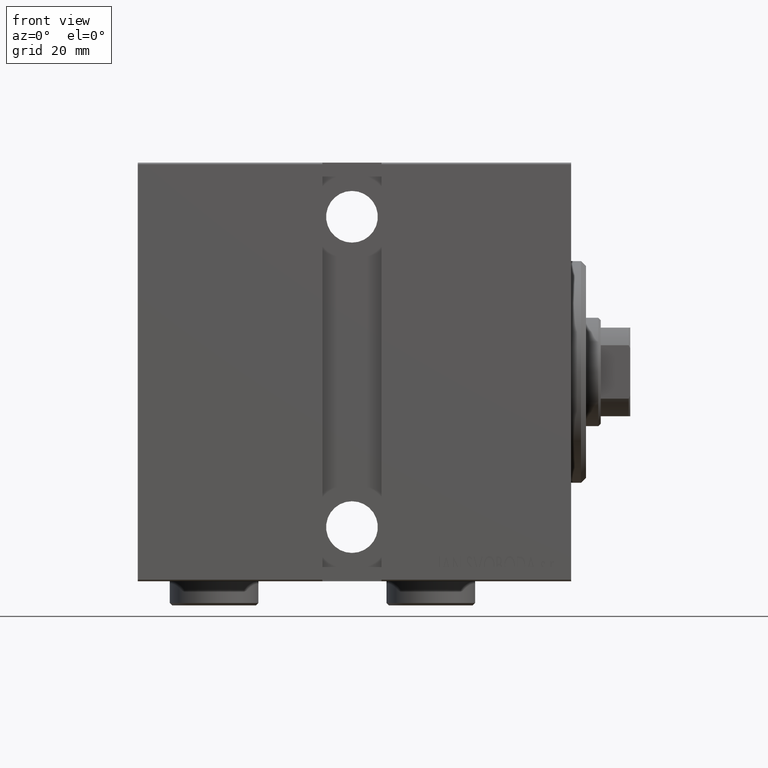
[diagram: clean part render]
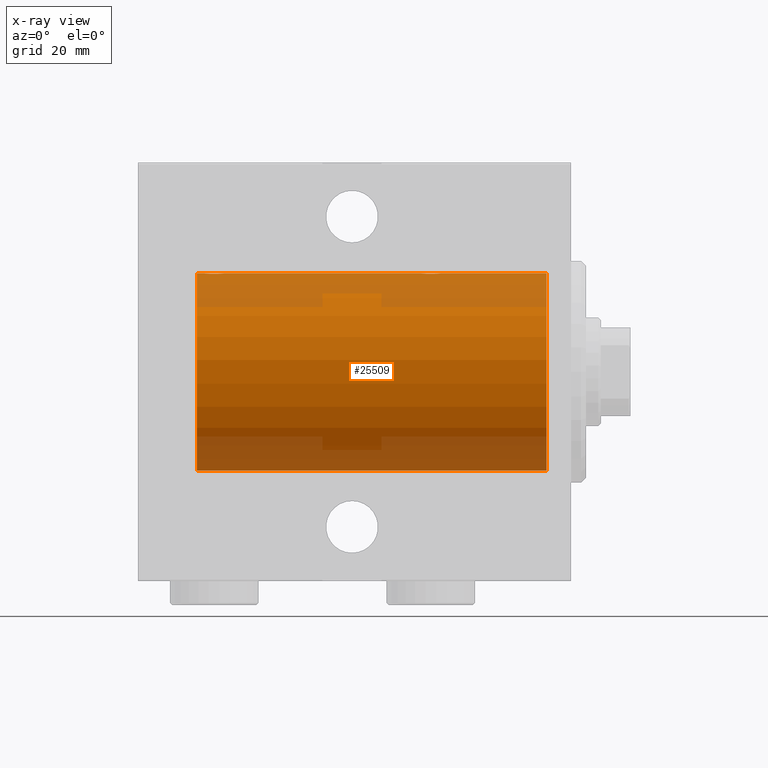
[diagram: x-ray — body ghosted, one internal face saturated and labeled with its STEP entity id]
A machine part, front view, then the same camera in x-ray: the body is ghosted and one INTERNAL B-rep face — a face not visible from any outside direction — is saturated and labeled: STEP entity #25509.
In plain terms, the highlighted cylindrical surface (partial cylindrical patch) has radius 20 mm, axis along (1, 0, -0).
Its self-contained STEP definition (entity closure, byte-faithful):
#184 = CARTESIAN_POINT ( 'NONE',  ( 70.50000000000000000, -1.553188236289650144E-23, 20.00000000000000000 ) ) ;
#1310 = CARTESIAN_POINT ( 'NONE',  ( 76.00000000000000000, 0.000000000000000000, 20.00000000000000000 ) ) ;
#1446 = CIRCLE ( 'NONE', #26332, 20.00000000000000000 ) ;
#1497 = CARTESIAN_POINT ( 'NONE',  ( 72.76180153897439595, 1.999905101582713396, 19.89975827978156531 ) ) ;
#1690 = VECTOR ( 'NONE', #13404, 1000.000000000000000 ) ;
#2210 = VECTOR ( 'NONE', #42486, 1000.000000000000000 ) ;
#2357 = CARTESIAN_POINT ( 'NONE',  ( 70.76510545398019758, 1.003547732426800065, 19.97510079925437765 ) ) ;
#3286 = AXIS2_PLACEMENT_3D ( 'NONE', #23971, #3691, #13947 ) ;
#3691 = DIRECTION ( 'NONE',  ( -1.000000000000000000, -0.000000000000000000, -0.000000000000000000 ) ) ;
#4197 = EDGE_CURVE ( 'NONE', #37184, #6694, #1446, .T. ) ;
#4492 = CARTESIAN_POINT ( 'NONE',  ( 30.00615770380712632, 1.322305185229308844, 19.95645382900617193 ) ) ;
#4717 = CARTESIAN_POINT ( 'NONE',  ( 26.76510545398016205, 1.003547732426798955, 19.97510079925437054 ) ) ;
#4923 = CARTESIAN_POINT ( 'NONE',  ( 27.61403810544162951, 1.797847595792755770, 19.91909332229799290 ) ) ;
#5140 = CARTESIAN_POINT ( 'NONE',  ( 26.50000000000000355, -1.552596590610734385E-23, 20.00000000000000000 ) ) ;
#5489 = CARTESIAN_POINT ( 'NONE',  ( 70.90992932310328456, 1.220099331833891743, 19.96304379627741454 ) ) ;
#5687 = VERTEX_POINT ( 'NONE', #11091 ) ;
#6638 = EDGE_CURVE ( 'NONE', #14814, #18893, #23947, .T. ) ;
#6689 = DIRECTION ( 'NONE',  ( 0.000000000000000000, 0.000000000000000000, 1.000000000000000000 ) ) ;
#6694 = VERTEX_POINT ( 'NONE', #13046 ) ;
#7266 = CYLINDRICAL_SURFACE ( 'NONE', #3286, 20.00000000000000000 ) ;
#8063 = CARTESIAN_POINT ( 'NONE',  ( 28.23758582179997845, 1.987020435121066742, 19.90106552791688799 ) ) ;
#8289 = CARTESIAN_POINT ( 'NONE',  ( 26.99261358456011095, 1.321069663197662836, 19.95654117037011588 ) ) ;
#8416 = CARTESIAN_POINT ( 'NONE',  ( 70.60210312641140717, 0.6443418861413057197, 19.98998539619404369 ) ) ;
#8495 = CARTESIAN_POINT ( 'NONE',  ( 26.70246098872837237, 0.8865903856744267175, 19.98070694681038972 ) ) ;
#8626 = CARTESIAN_POINT ( 'NONE',  ( 70.70246098872841856, 0.8865903856744251632, 19.98070694681040038 ) ) ;
#8843 = CARTESIAN_POINT ( 'NONE',  ( 70.99261358456014648, 1.321069663197660837, 19.95654117037011943 ) ) ;
#9058 = CARTESIAN_POINT ( 'NONE',  ( 74.50000000000001421, 1.179655747245154047E-15, 20.00000000000000000 ) ) ;
#9269 = CARTESIAN_POINT ( 'NONE',  ( 74.09059733457554842, 1.219458756546261791, 19.96308513509966787 ) ) ;
#10032 = DIRECTION ( 'NONE',  ( -1.000000000000000000, 0.000000000000000000, 0.000000000000000000 ) ) ;
#10274 = EDGE_CURVE ( 'NONE', #14752, #6694, #31487, .T. ) ;
#10631 = ORIENTED_EDGE ( 'NONE', *, *, #43259, .T. ) ;
#10821 = FACE_OUTER_BOUND ( 'NONE', #30316, .T. ) ;
#11091 = CARTESIAN_POINT ( 'NONE',  ( 30.50000000000000000, -3.987914257189907626E-15, 20.00000000000000000 ) ) ;
#11216 = DIRECTION ( 'NONE',  ( -1.000000000000000000, -0.000000000000000000, -0.000000000000000000 ) ) ;
#11280 = EDGE_CURVE ( 'NONE', #18893, #5687, #25134, .T. ) ;
#11390 = CARTESIAN_POINT ( 'NONE',  ( 28.76180153897437819, 1.999905101582717171, 19.89975827978156531 ) ) ;
#11831 = CARTESIAN_POINT ( 'NONE',  ( 30.48701494615325203, 0.2622407139811169796, 19.99868965376115071 ) ) ;
#12603 = CARTESIAN_POINT ( 'NONE',  ( 71.85628869360149906, 1.898109641280497639, 19.90978941500366872 ) ) ;
#13046 = CARTESIAN_POINT ( 'NONE',  ( 5.000000000000004441, 2.449293598294706513E-15, -20.00000000000000000 ) ) ;
#13130 = ORIENTED_EDGE ( 'NONE', *, *, #31786, .F. ) ;
#13404 = DIRECTION ( 'NONE',  ( -1.000000000000000000, -0.000000000000000000, -0.000000000000000000 ) ) ;
#13918 = ORIENTED_EDGE ( 'NONE', *, *, #6638, .T. ) ;
#13947 = DIRECTION ( 'NONE',  ( 0.000000000000000000, 0.000000000000000000, 1.000000000000000000 ) ) ;
#14287 = VECTOR ( 'NONE', #11216, 1000.000000000000000 ) ;
#14522 = CARTESIAN_POINT ( 'NONE',  ( 30.50000000000000000, -3.987914257189907626E-15, 20.00000000000000000 ) ) ;
#14752 = VERTEX_POINT ( 'NONE', #20667 ) ;
#14814 = VERTEX_POINT ( 'NONE', #25534 ) ;
#14957 = CARTESIAN_POINT ( 'NONE',  ( 30.39765113166073363, 0.6450624715427637490, 19.98996196681219928 ) ) ;
#15094 = CARTESIAN_POINT ( 'NONE',  ( 71.49702773215048524, 1.735228749583821672, 19.92471474456648650 ) ) ;
#15314 = CARTESIAN_POINT ( 'NONE',  ( 73.72950112230634545, 1.598854313793176773, 19.93684595445884256 ) ) ;
#15489 = ORIENTED_EDGE ( 'NONE', *, *, #10274, .F. ) ;
#15739 = CARTESIAN_POINT ( 'NONE',  ( 71.17939834916164443, 1.507796451871717736, 19.94330239452387943 ) ) ;
#15961 = CARTESIAN_POINT ( 'NONE',  ( 71.61403810544166504, 1.797847595792759323, 19.91909332229798935 ) ) ;
#16288 = DIRECTION ( 'NONE',  ( -1.000000000000000000, -0.000000000000000000, -0.000000000000000000 ) ) ;
#16767 = CARTESIAN_POINT ( 'NONE',  ( 76.00000000000000000, 0.000000000000000000, 20.00000000000000000 ) ) ;
#17207 = LINE ( 'NONE', #16767, #1690 ) ;
#18091 = CARTESIAN_POINT ( 'NONE',  ( 29.50645759073829311, 1.747830109444741042, 19.92373272380676852 ) ) ;
#18434 = CARTESIAN_POINT ( 'NONE',  ( 74.29721343056698402, 0.8872481584516744846, 19.98067755938509649 ) ) ;
#18515 = CARTESIAN_POINT ( 'NONE',  ( 26.51308707988552626, 0.2631998640366420283, 19.99867931558985390 ) ) ;
#18893 = VERTEX_POINT ( 'NONE', #184 ) ;
#20667 = CARTESIAN_POINT ( 'NONE',  ( 76.00000000000000000, 2.449293598294706513E-15, -20.00000000000000000 ) ) ;
#21431 = CARTESIAN_POINT ( 'NONE',  ( 30.23576365127895116, 1.002099838626316464, 19.97517568592526160 ) ) ;
#21654 = CARTESIAN_POINT ( 'NONE',  ( 27.98100525813888595, 1.935912154109690198, 19.90610216711450775 ) ) ;
#21996 = CARTESIAN_POINT ( 'NONE',  ( 73.02513908455000546, 1.947330458682945187, 19.90522393307485061 ) ) ;
#22078 = CARTESIAN_POINT ( 'NONE',  ( 26.60210312641135033, 0.6443418861413082732, 19.98998539619404013 ) ) ;
#22430 = CARTESIAN_POINT ( 'NONE',  ( 70.56426851132711420, 0.5196544277756652841, 19.99365919015135873 ) ) ;
#22636 = CARTESIAN_POINT ( 'NONE',  ( 70.50000000000000000, -1.553188236289650144E-23, 20.00000000000000000 ) ) ;
#22855 = CARTESIAN_POINT ( 'NONE',  ( 71.98100525813890727, 1.935912154109689531, 19.90610216711451130 ) ) ;
#22935 = CARTESIAN_POINT ( 'NONE',  ( 5.000000000000004441, 0.000000000000000000, 20.00000000000000000 ) ) ;
#23630 = VERTEX_POINT ( 'NONE', #36036 ) ;
#23848 = CARTESIAN_POINT ( 'NONE',  ( 76.00000000000000000, 0.000000000000000000, 0.000000000000000000 ) ) ;
#23947 = B_SPLINE_CURVE_WITH_KNOTS ( 'NONE', 3,
 ( #9058, #29326, #43121, #32457, #32025, #18434, #35787, #9269, #29554, #15314, #38915, #21996, #1497, #39766, #25546, #22855, #12603, #15961, #15094, #39339, #15739, #8843, #5489, #2357, #8626, #8416, #22430, #36004, #36432, #22636 ),
 .UNSPECIFIED., .F., .F.,
 ( 4, 2, 2, 2, 2, 2, 2, 2, 2, 2, 2, 2, 2, 2, 4 ),
 ( 1.146295712831832348E-18, 0.0003910512220831368810, 0.0007821024441662726779, 0.001173153666249408420, 0.001564204888332544055, 0.002346307332498786917, 0.003128409776665029562, 0.003519460998748130502, 0.003910512220831229707, 0.004301563442914330647, 0.004692614664997430719, 0.005083665887080530792, 0.005474717109163631731, 0.005865768331246731804, 0.006256819553329832743 ),
 .UNSPECIFIED. ) ;
#23971 = CARTESIAN_POINT ( 'NONE',  ( 76.00000000000000000, 0.000000000000000000, 0.000000000000000000 ) ) ;
#24554 = CARTESIAN_POINT ( 'NONE',  ( 26.90992932310325969, 1.220099331833889966, 19.96304379627741099 ) ) ;
#25134 = LINE ( 'NONE', #36225, #2210 ) ;
#25299 = VECTOR ( 'NONE', #16288, 1000.000000000000000 ) ;
#25420 = CARTESIAN_POINT ( 'NONE',  ( 30.09059733457551289, 1.219458756546269784, 19.96308513509966431 ) ) ;
#25509 = ADVANCED_FACE ( 'NONE', ( #10821 ), #7266, .F. ) ;
#25534 = CARTESIAN_POINT ( 'NONE',  ( 74.50000000000001421, 1.179655747245154047E-15, 20.00000000000000000 ) ) ;
#25546 = CARTESIAN_POINT ( 'NONE',  ( 72.23758582180001042, 1.987020435121064521, 19.90106552791689154 ) ) ;
#26332 = AXIS2_PLACEMENT_3D ( 'NONE', #38986, #38553, #35002 ) ;
#28333 = CARTESIAN_POINT ( 'NONE',  ( 30.49999999999997868, 0.1322335637814716913, 19.99999999999999645 ) ) ;
#28551 = CARTESIAN_POINT ( 'NONE',  ( 27.28039724650255948, 1.590453176650909350, 19.93679350243183634 ) ) ;
#29326 = CARTESIAN_POINT ( 'NONE',  ( 74.50000000000001421, 0.1322335637814731901, 20.00000000000000000 ) ) ;
#29554 = CARTESIAN_POINT ( 'NONE',  ( 74.00615770380713343, 1.322305185229304181, 19.95645382900617193 ) ) ;
#29866 = ORIENTED_EDGE ( 'NONE', *, *, #38844, .T. ) ;
#30316 = EDGE_LOOP ( 'NONE', ( #15489, #13130, #10631, #13918, #42142, #36686, #29866, #32675 ) ) ;
#31487 = LINE ( 'NONE', #32144, #14287 ) ;
#31679 = CARTESIAN_POINT ( 'NONE',  ( 29.02513908454998059, 1.947330458682949850, 19.90522393307484705 ) ) ;
#31786 = EDGE_CURVE ( 'NONE', #39059, #14752, #32906, .T. ) ;
#32025 = CARTESIAN_POINT ( 'NONE',  ( 74.39765113166075139, 0.6450624715427611955, 19.98996196681220638 ) ) ;
#32107 = CARTESIAN_POINT ( 'NONE',  ( 27.17939834916165509, 1.507796451871719734, 19.94330239452387588 ) ) ;
#32144 = CARTESIAN_POINT ( 'NONE',  ( 76.00000000000000000, 2.449293598294706513E-15, -20.00000000000000000 ) ) ;
#32457 = CARTESIAN_POINT ( 'NONE',  ( 74.43615228383329452, 0.5179893069484606816, 19.99370013622814568 ) ) ;
#32675 = ORIENTED_EDGE ( 'NONE', *, *, #4197, .T. ) ;
#32906 = CIRCLE ( 'NONE', #33634, 20.00000000000000000 ) ;
#33634 = AXIS2_PLACEMENT_3D ( 'NONE', #23848, #10032, #6689 ) ;
#35002 = DIRECTION ( 'NONE',  ( 0.000000000000000000, 0.000000000000000000, 1.000000000000000000 ) ) ;
#35237 = CARTESIAN_POINT ( 'NONE',  ( 27.85628869360148840, 1.898109641280496085, 19.90978941500366872 ) ) ;
#35447 = CARTESIAN_POINT ( 'NONE',  ( 26.56426851132707867, 0.5196544277756658392, 19.99365919015135873 ) ) ;
#35657 = CARTESIAN_POINT ( 'NONE',  ( 26.50000000000000000, 0.1305706983324424475, 20.00000000000000355 ) ) ;
#35787 = CARTESIAN_POINT ( 'NONE',  ( 74.23576365127897247, 1.002099838626307138, 19.97517568592526516 ) ) ;
#36004 = CARTESIAN_POINT ( 'NONE',  ( 70.51308707988555113, 0.2631998640366408626, 19.99867931558986456 ) ) ;
#36036 = CARTESIAN_POINT ( 'NONE',  ( 26.50000000000000355, -1.552596590610734385E-23, 20.00000000000000000 ) ) ;
#36225 = CARTESIAN_POINT ( 'NONE',  ( 76.00000000000000000, 0.000000000000000000, 20.00000000000000000 ) ) ;
#36432 = CARTESIAN_POINT ( 'NONE',  ( 70.50000000000004263, 0.1305706983324428083, 20.00000000000000355 ) ) ;
#36686 = ORIENTED_EDGE ( 'NONE', *, *, #38894, .T. ) ;
#37184 = VERTEX_POINT ( 'NONE', #22935 ) ;
#37447 = CARTESIAN_POINT ( 'NONE',  ( 76.00000000000000000, 0.000000000000000000, 20.00000000000000000 ) ) ;
#38340 = CARTESIAN_POINT ( 'NONE',  ( 30.29721343056696270, 0.8872481584516771491, 19.98067755938510004 ) ) ;
#38553 = DIRECTION ( 'NONE',  ( -1.000000000000000000, 0.000000000000000000, 0.000000000000000000 ) ) ;
#38560 = CARTESIAN_POINT ( 'NONE',  ( 28.37018818709292844, 2.000047251570879148, 19.89974399317114617 ) ) ;
#38844 = EDGE_CURVE ( 'NONE', #23630, #37184, #17207, .T. ) ;
#38894 = EDGE_CURVE ( 'NONE', #5687, #23630, #41485, .T. ) ;
#38915 = CARTESIAN_POINT ( 'NONE',  ( 73.50645759073830732, 1.747830109444736602, 19.92373272380677207 ) ) ;
#38986 = CARTESIAN_POINT ( 'NONE',  ( 5.000000000000004441, 0.000000000000000000, 0.000000000000000000 ) ) ;
#38991 = CARTESIAN_POINT ( 'NONE',  ( 27.49702773215046392, 1.735228749583825003, 19.92471474456648650 ) ) ;
#39059 = VERTEX_POINT ( 'NONE', #1310 ) ;
#39339 = CARTESIAN_POINT ( 'NONE',  ( 71.28039724650254527, 1.590453176650904910, 19.93679350243183990 ) ) ;
#39766 = CARTESIAN_POINT ( 'NONE',  ( 72.37018818709296397, 2.000047251570878259, 19.89974399317116038 ) ) ;
#40336 = LINE ( 'NONE', #37447, #25299 ) ;
#41469 = CARTESIAN_POINT ( 'NONE',  ( 30.43615228383327320, 0.5179893069484664547, 19.99370013622814568 ) ) ;
#41485 = B_SPLINE_CURVE_WITH_KNOTS ( 'NONE', 3,
 ( #14522, #28333, #11831, #41469, #14957, #38340, #21431, #25420, #4492, #41904, #18091, #31679, #11390, #38560, #8063, #21654, #35237, #4923, #38991, #28551, #32107, #8289, #24554, #4717, #8495, #22078, #35447, #18515, #35657, #5140 ),
 .UNSPECIFIED., .F., .F.,
 ( 4, 2, 2, 2, 2, 2, 2, 2, 2, 2, 2, 2, 2, 2, 4 ),
 ( 6.737296076284884849E-18, 0.0003910512220831210517, 0.0007821024441662353813, 0.001173153666249349657, 0.001564204888332464041, 0.002346307332498693676, 0.003128409776664922877, 0.003519460998748032490, 0.003910512220831142104, 0.004301563442914251717, 0.004692614664997360463, 0.005083665887080470944, 0.005474717109163579690, 0.005865768331246689303, 0.006256819553329798916 ),
 .UNSPECIFIED. ) ;
#41904 = CARTESIAN_POINT ( 'NONE',  ( 29.72950112230633835, 1.598854313793181658, 19.93684595445884966 ) ) ;
#42142 = ORIENTED_EDGE ( 'NONE', *, *, #11280, .T. ) ;
#42486 = DIRECTION ( 'NONE',  ( -1.000000000000000000, -0.000000000000000000, -0.000000000000000000 ) ) ;
#43121 = CARTESIAN_POINT ( 'NONE',  ( 74.48701494615326624, 0.2622407139811093191, 19.99868965376115426 ) ) ;
#43259 = EDGE_CURVE ( 'NONE', #39059, #14814, #40336, .T. ) ;